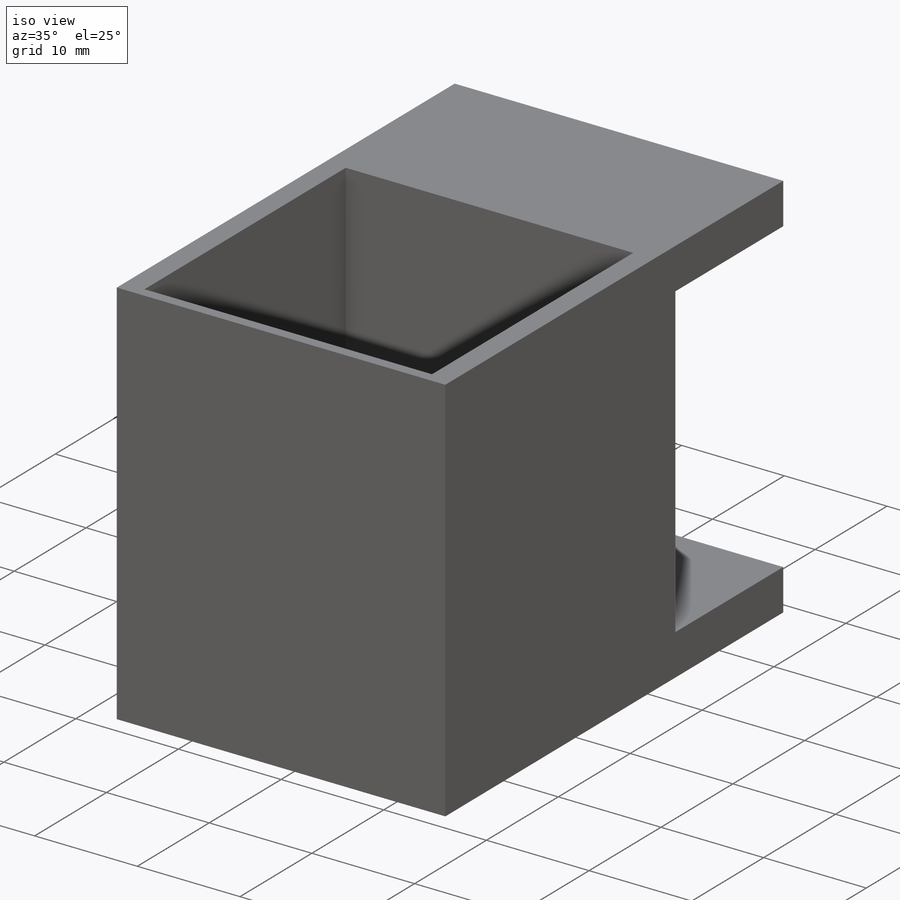
[diagram: iso view]
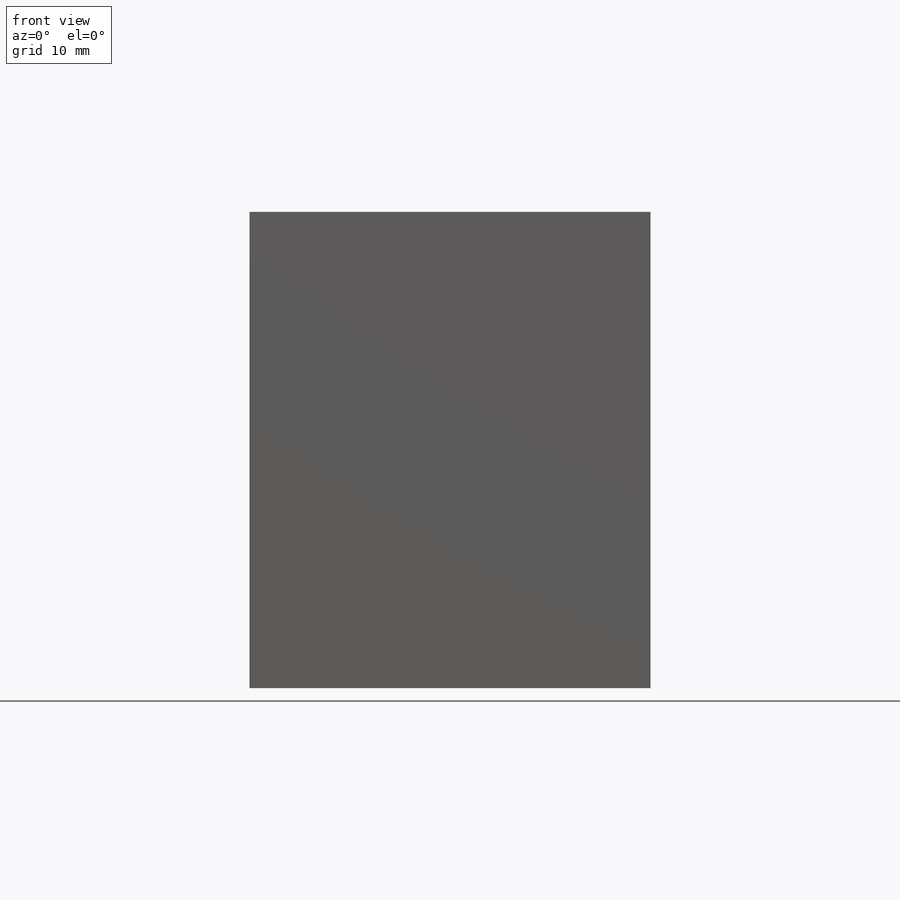
[diagram: front view]
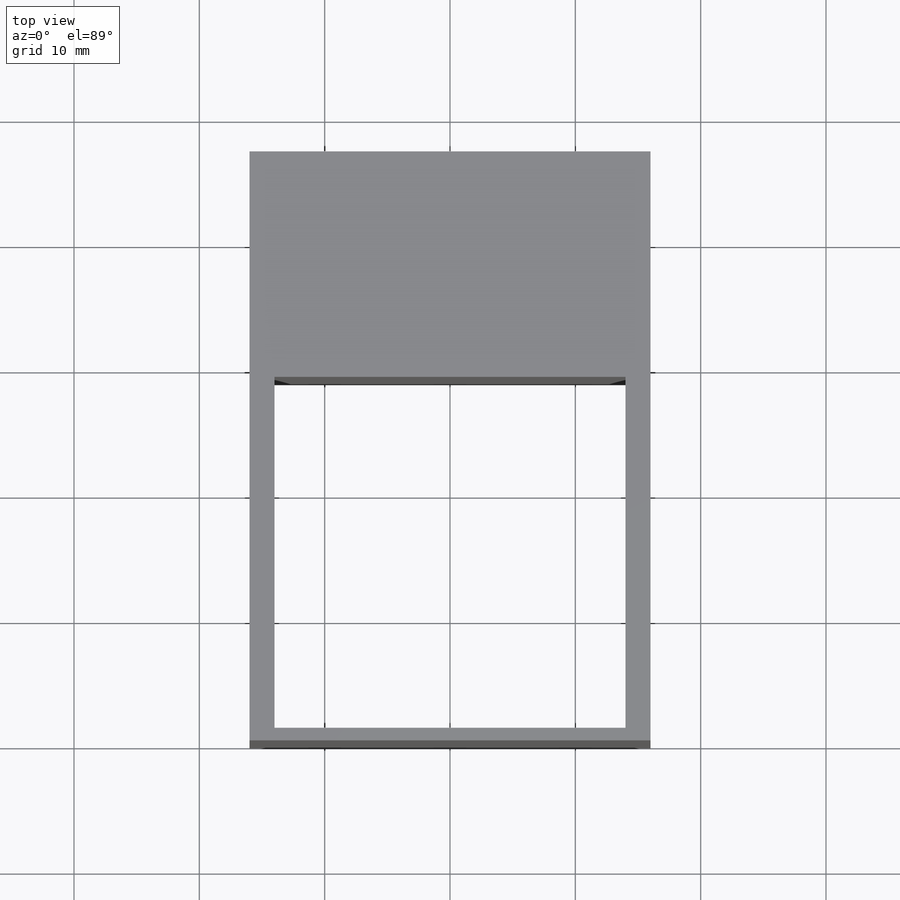
[diagram: top view]
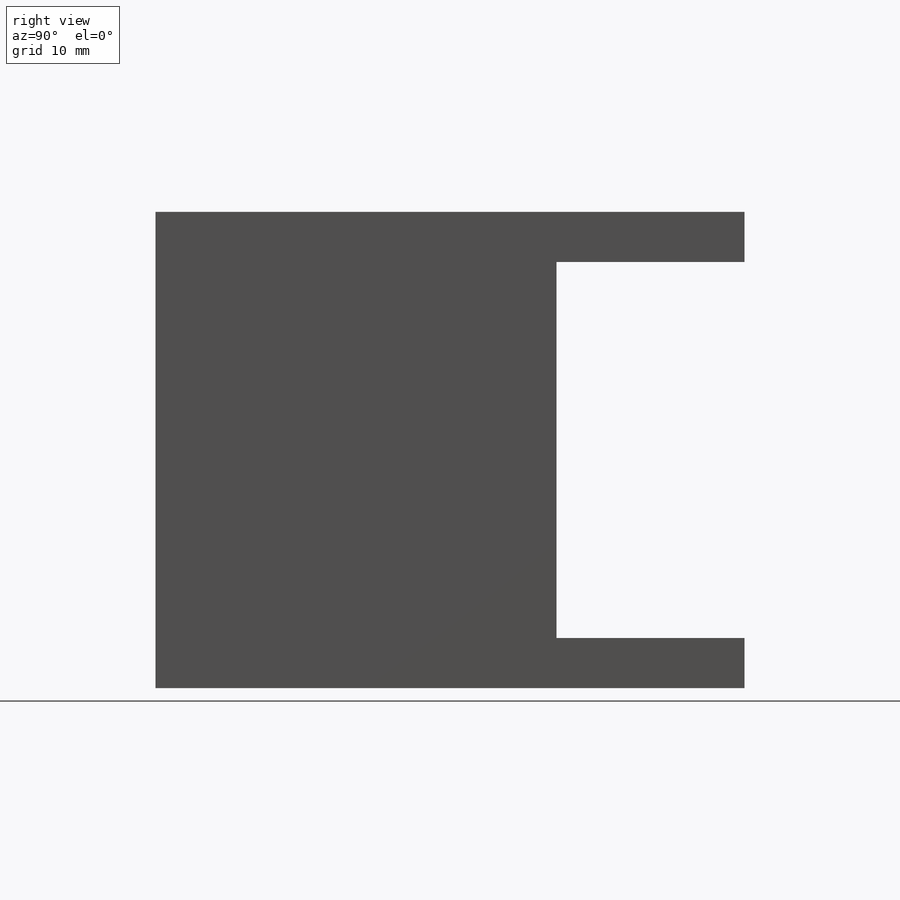
[diagram: right view]
SOLIDWORKS PART (.sldprt)
format: sldprt  version: not decoded by parser v0  size: 195,072 bytes
history: native  units: mm
features: sketch x3, cut_extrude x2, material x1, extrude x1 (+13 scaffold rows collapsed)
feature tree (20):
  scaffold x13  (default folders/planes/origin — collapsed)
  material  "Material <not specified>"
  sketch  "Sketch1"  dims[D1=38.0mm D2=4.0mm D3=4.0mm D4=15.0mm D5=47.0mm D6=47.0mm]
  extrude  "Boss-Extrude1"  Depth=32mm
  sketch  "Sketch2"  dims[D1=1.0mm D2=28.0mm D3=28.0mm D4=2.0mm D5=4.0mm]
  cut_extrude  "Cut-Extrude1"  [1 undecoded]
  sketch  "Sketch3"  dims[c1.D1=2.0mm c1.D2=2.0mm c1.D3=2.0mm c2.D2=2.0mm c2.D4=2.0mm]
  cut_extrude  "Cut-Extrude2"  Depth=2mm
decode coverage: 5 of 6 modeling features carry decoded parameters
note: 1 parameter value undecoded
note: suppression state not decoded; provenance and decode notes live in map.json
